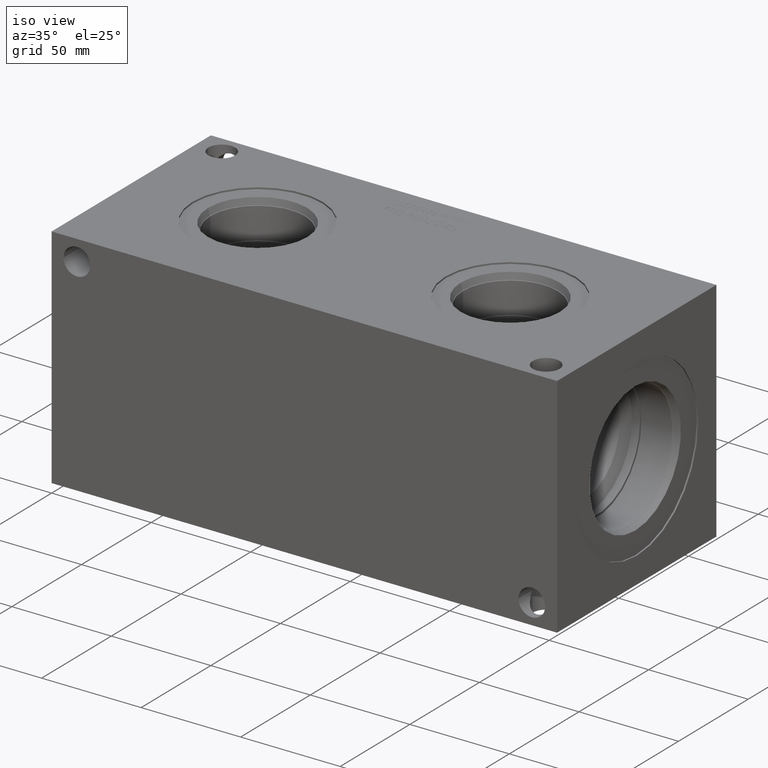
[diagram: clean part render]
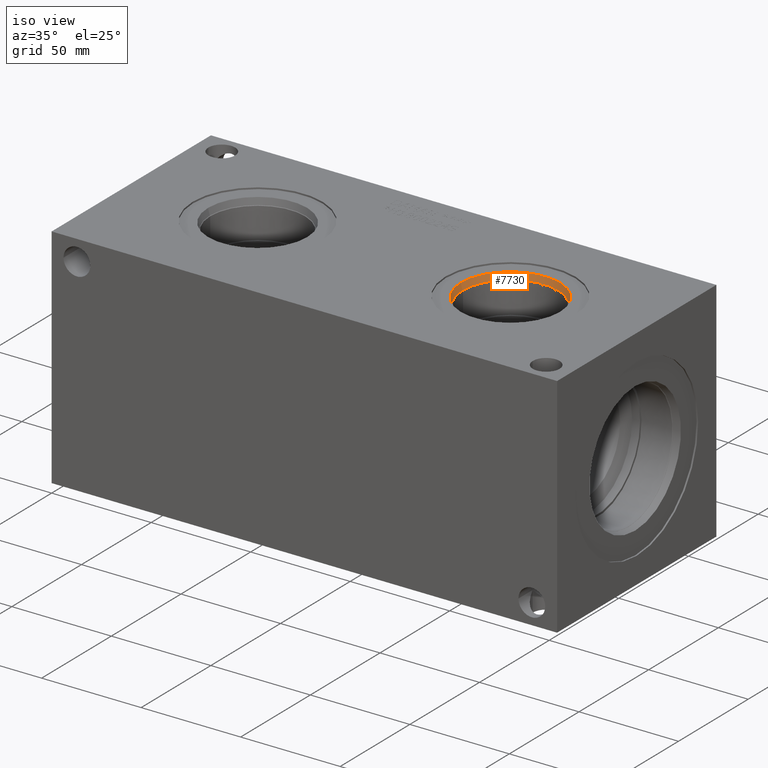
[diagram: same view with one face highlighted and labeled with its STEP entity id]
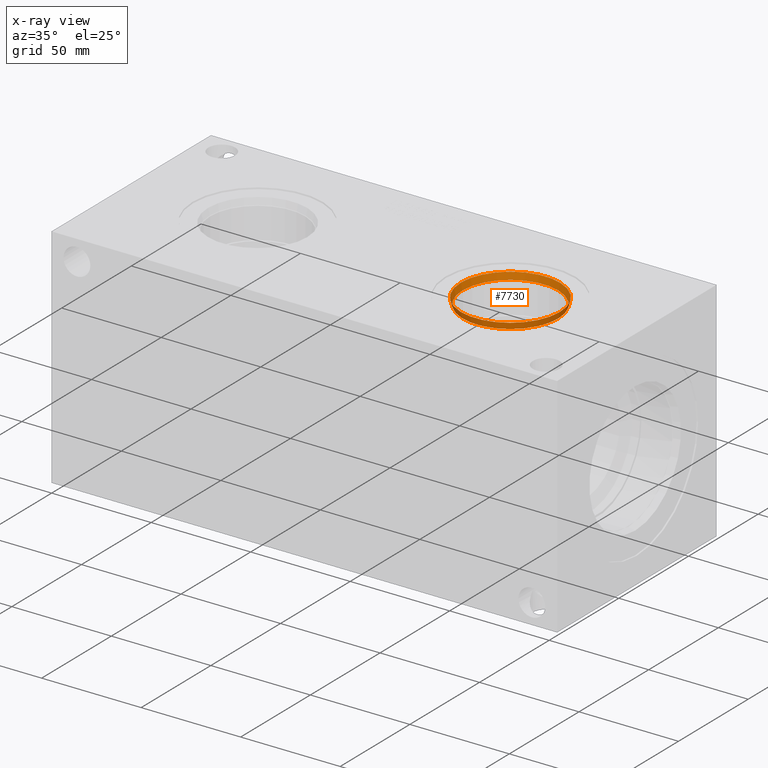
[diagram: x-ray of the same camera — body ghosted, the highlighted face saturated]
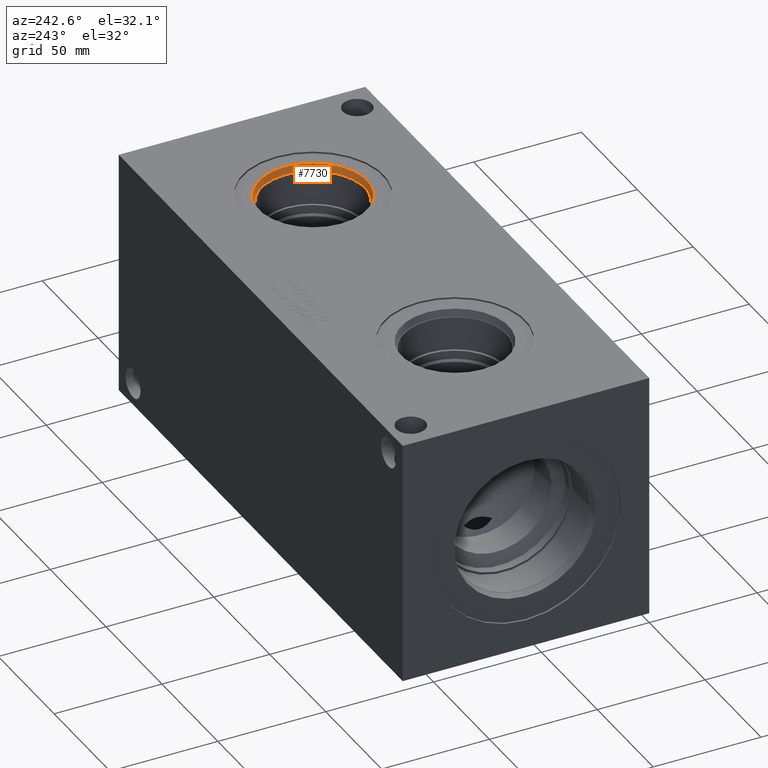
[diagram: same view with one face highlighted and labeled with its STEP entity id]
A machine part, iso view. The second image highlights one B-rep face of the part: STEP entity #7730.
The next image is the same camera in x-ray: the body ghosted, the highlighted face saturated — about 0% of this face is hidden behind the body in this view.
A second angle (auxiliary view) of the same face is appended — the face is thin or edge-on in the first view.
In plain terms, the highlighted conical surface has half-angle 15.031 deg.
Its self-contained STEP definition (entity closure, byte-faithful):
#32=CONICAL_SURFACE('',#8120,24.46655,0.262336001092617);
#148=CIRCLE('',#8118,24.9047);
#149=CIRCLE('',#8119,24.9047);
#150=CIRCLE('',#8121,24.0284);
#151=CIRCLE('',#8122,24.0284);
#899=FACE_OUTER_BOUND('',#1328,.T.);
#1328=EDGE_LOOP('',(#6599,#6600,#6601,#6602,#6603,#6604));
#2101=LINE('',#13073,#2850);
#2850=VECTOR('',#9605,24.46655);
#3538=VERTEX_POINT('',#13067);
#3539=VERTEX_POINT('',#13068);
#3540=VERTEX_POINT('',#13072);
#3541=VERTEX_POINT('',#13074);
#4581=EDGE_CURVE('',#3538,#3539,#148,.T.);
#4582=EDGE_CURVE('',#3539,#3538,#149,.T.);
#4583=EDGE_CURVE('',#3539,#3540,#2101,.T.);
#4584=EDGE_CURVE('',#3540,#3541,#150,.T.);
#4585=EDGE_CURVE('',#3541,#3540,#151,.T.);
#6599=ORIENTED_EDGE('',*,*,#4581,.F.);
#6600=ORIENTED_EDGE('',*,*,#4582,.F.);
#6601=ORIENTED_EDGE('',*,*,#4583,.T.);
#6602=ORIENTED_EDGE('',*,*,#4584,.T.);
#6603=ORIENTED_EDGE('',*,*,#4585,.T.);
#6604=ORIENTED_EDGE('',*,*,#4583,.F.);
#7730=ADVANCED_FACE('',(#899),#32,.F.);
#8118=AXIS2_PLACEMENT_3D('',#13069,#9599,#9600);
#8119=AXIS2_PLACEMENT_3D('',#13070,#9601,#9602);
#8120=AXIS2_PLACEMENT_3D('',#13071,#9603,#9604);
#8121=AXIS2_PLACEMENT_3D('',#13075,#9606,#9607);
#8122=AXIS2_PLACEMENT_3D('',#13076,#9608,#9609);
#9599=DIRECTION('center_axis',(0.,0.,-1.));
#9600=DIRECTION('ref_axis',(1.,0.,0.));
#9601=DIRECTION('center_axis',(0.,0.,-1.));
#9602=DIRECTION('ref_axis',(1.,0.,0.));
#9603=DIRECTION('center_axis',(0.,0.,1.));
#9604=DIRECTION('ref_axis',(1.,0.,0.));
#9605=DIRECTION('',(0.259337336452569,-3.17596638986039E-17,-0.965786801484513));
#9606=DIRECTION('center_axis',(0.,0.,-1.));
#9607=DIRECTION('ref_axis',(1.,0.,0.));
#9608=DIRECTION('center_axis',(0.,0.,-1.));
#9609=DIRECTION('ref_axis',(1.,0.,0.));
#13067=CARTESIAN_POINT('',(215.4047,57.15,113.5126));
#13068=CARTESIAN_POINT('',(165.5953,57.15,113.5126));
#13069=CARTESIAN_POINT('Origin',(190.5,57.15,113.5126));
#13070=CARTESIAN_POINT('Origin',(190.5,57.15,113.5126));
#13071=CARTESIAN_POINT('Origin',(190.5,57.15,111.8809048));
#13072=CARTESIAN_POINT('',(166.4716,57.15,110.2492096));
#13073=CARTESIAN_POINT('',(166.03345,57.15,111.8809048));
#13074=CARTESIAN_POINT('',(214.5284,57.15,110.2492096));
#13075=CARTESIAN_POINT('Origin',(190.5,57.15,110.2492096));
#13076=CARTESIAN_POINT('Origin',(190.5,57.15,110.2492096));